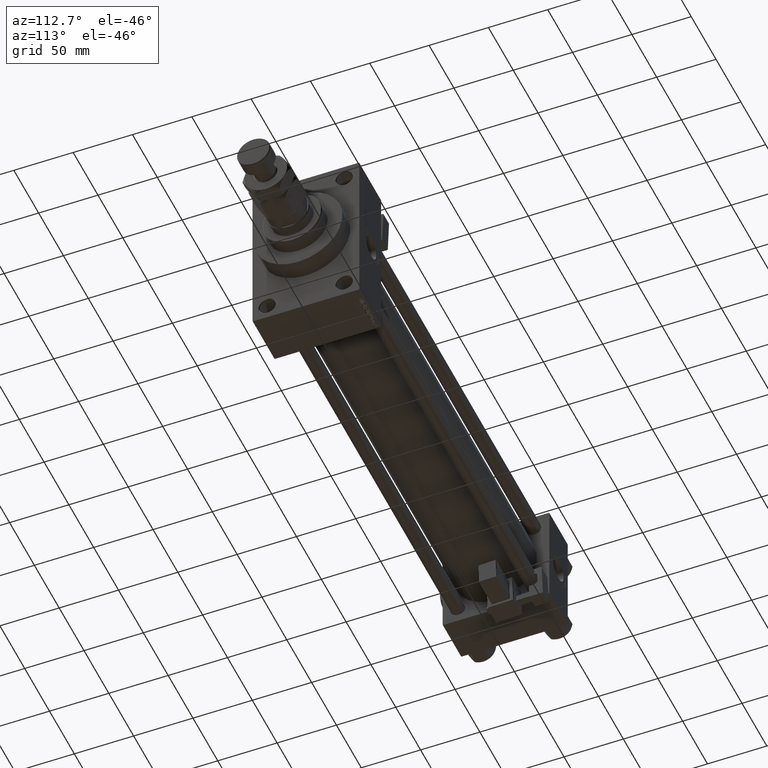
[diagram: clean part render]
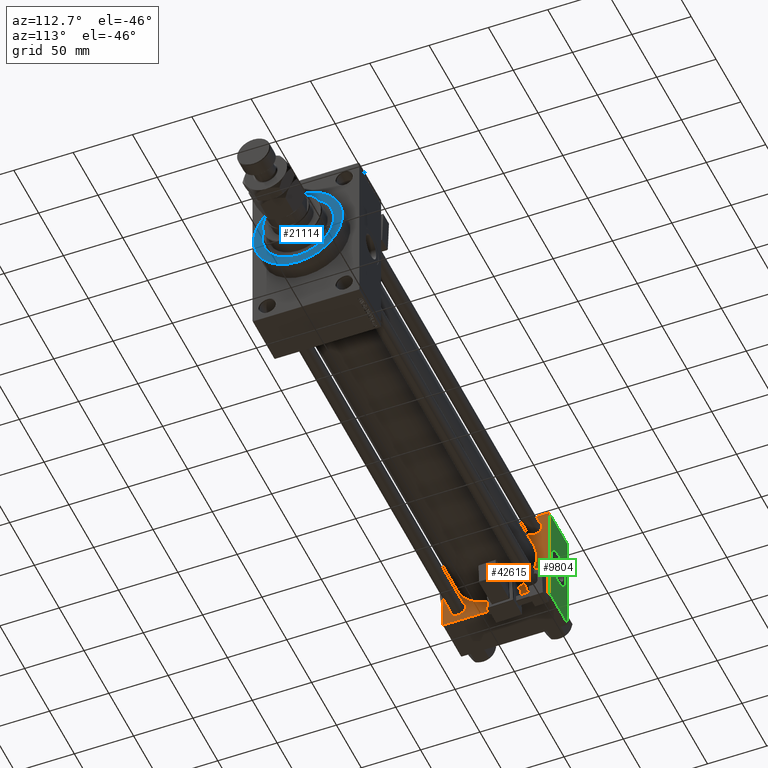
[diagram: same view with three faces highlighted in distinct colors, each labeled with its STEP entity id]
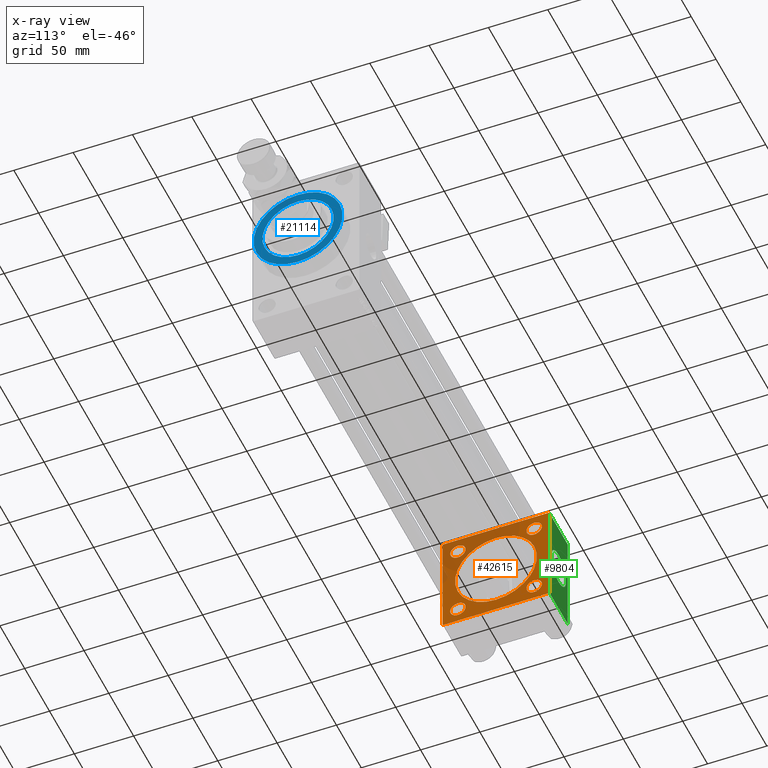
[diagram: x-ray of the same camera — body ghosted, the three highlighted faces saturated]
A machine part, auxiliary view with three faces highlighted in distinct colors.
The next image is the same camera in x-ray (body ghosted, the three faces saturated) — at least one of them is partly hidden behind the body in this view.
Their STEP definitions:

[orange] entity #42615 — the highlighted planar face has unit normal (-1, 0, 0).
#967 = DIRECTION ( 'NONE',  ( -1.000000000000000000, 0.000000000000000000, -0.000000000000000000 ) ) ;
#1260 = DIRECTION ( 'NONE',  ( -0.000000000000000000, -0.7071067811865425767, -0.7071067811865524577 ) ) ;
#2042 = AXIS2_PLACEMENT_3D ( 'NONE', #6447, #30708, #38502 ) ;
#2333 = CARTESIAN_POINT ( 'NONE',  ( 36.99999999999997868, -2.602085213965210642E-15, 0.000000000000000000 ) ) ;
#2644 = LINE ( 'NONE', #23379, #8742 ) ;
#3036 = LINE ( 'NONE', #19444, #31451 ) ;
#3097 = ORIENTED_EDGE ( 'NONE', *, *, #38241, .T. ) ;
#3404 = EDGE_CURVE ( 'NONE', #7180, #24565, #35695, .T. ) ;
#3500 = ORIENTED_EDGE ( 'NONE', *, *, #31739, .T. ) ;
#4148 = DIRECTION ( 'NONE',  ( 0.000000000000000000, 0.000000000000000000, 1.000000000000000000 ) ) ;
#4194 = CARTESIAN_POINT ( 'NONE',  ( 37.00000000000000000, -45.00000000000000711, 44.49999999999997158 ) ) ;
#4258 = CARTESIAN_POINT ( 'NONE',  ( 37.00000000000000000, -32.14999999999997726, 25.65000000000011582 ) ) ;
#4375 = ORIENTED_EDGE ( 'NONE', *, *, #44394, .T. ) ;
#4892 = CIRCLE ( 'NONE', #20361, 6.500000000000005329 ) ;
#5255 = CARTESIAN_POINT ( 'NONE',  ( 37.00000000000000000, -45.00000000000000711, 45.00000000000000000 ) ) ;
#5398 = EDGE_LOOP ( 'NONE', ( #21678, #28680, #50970, #23468, #30907, #4375, #35516, #30703 ) ) ;
#6238 = EDGE_LOOP ( 'NONE', ( #3097, #19014 ) ) ;
#6447 = CARTESIAN_POINT ( 'NONE',  ( 37.00000000000000000, -32.14999999999997726, -32.15000000000001279 ) ) ;
#6909 = ORIENTED_EDGE ( 'NONE', *, *, #48208, .T. ) ;
#6958 = CARTESIAN_POINT ( 'NONE',  ( 37.00000000000000000, -45.00000000000000000, -44.49999999999995737 ) ) ;
#6963 = EDGE_CURVE ( 'NONE', #52634, #36234, #3036, .T. ) ;
#7012 = VERTEX_POINT ( 'NONE', #49559 ) ;
#7180 = VERTEX_POINT ( 'NONE', #30457 ) ;
#7346 = VERTEX_POINT ( 'NONE', #48705 ) ;
#7551 = CARTESIAN_POINT ( 'NONE',  ( 37.00000000000000000, 44.49999999999998579, 45.00000000000001421 ) ) ;
#7955 = DIRECTION ( 'NONE',  ( 0.000000000000000000, 0.000000000000000000, 1.000000000000000000 ) ) ;
#8315 = VERTEX_POINT ( 'NONE', #44139 ) ;
#8742 = VECTOR ( 'NONE', #47559, 1000.000000000000000 ) ;
#8812 = DIRECTION ( 'NONE',  ( 0.000000000000000000, 0.7071067811865474617, -0.7071067811865474617 ) ) ;
#9273 = CARTESIAN_POINT ( 'NONE',  ( 37.00000000000000000, 32.14999999999999147, -25.64999999999999858 ) ) ;
#9663 = VERTEX_POINT ( 'NONE', #41100 ) ;
#10937 = FACE_BOUND ( 'NONE', #24078, .T. ) ;
#11001 = CIRCLE ( 'NONE', #41078, 6.499999999999895195 ) ;
#11408 = CARTESIAN_POINT ( 'NONE',  ( 37.00000000000000000, -32.14999999999997726, 38.64999999999990621 ) ) ;
#11741 = FACE_BOUND ( 'NONE', #41580, .T. ) ;
#12147 = DIRECTION ( 'NONE',  ( 0.000000000000000000, 0.000000000000000000, 1.000000000000000000 ) ) ;
#12582 = VECTOR ( 'NONE', #13594, 1000.000000000000000 ) ;
#13566 = CIRCLE ( 'NONE', #20438, 6.499999999999895195 ) ;
#13594 = DIRECTION ( 'NONE',  ( 0.000000000000000000, 7.709882115452476934E-17, -1.000000000000000000 ) ) ;
#14768 = CIRCLE ( 'NONE', #26809, 6.500000000000005329 ) ;
#14966 = PLANE ( 'NONE',  #36466 ) ;
#15661 = CARTESIAN_POINT ( 'NONE',  ( 36.99999999999997868, -2.602085213965210642E-15, 0.000000000000000000 ) ) ;
#16002 = EDGE_CURVE ( 'NONE', #46662, #9663, #24200, .T. ) ;
#16101 = DIRECTION ( 'NONE',  ( -1.000000000000000000, 0.000000000000000000, -0.000000000000000000 ) ) ;
#16358 = CARTESIAN_POINT ( 'NONE',  ( 37.00000000000000000, -44.49999999999998579, -45.00000000000000000 ) ) ;
#16507 = EDGE_CURVE ( 'NONE', #50038, #52047, #14768, .T. ) ;
#16555 = DIRECTION ( 'NONE',  ( -1.000000000000000000, 0.000000000000000000, -0.000000000000000000 ) ) ;
#19014 = ORIENTED_EDGE ( 'NONE', *, *, #35829, .T. ) ;
#19195 = DIRECTION ( 'NONE',  ( 0.000000000000000000, 0.000000000000000000, 1.000000000000000000 ) ) ;
#19219 = EDGE_CURVE ( 'NONE', #46174, #20426, #2644, .T. ) ;
#19444 = CARTESIAN_POINT ( 'NONE',  ( 37.00000000000000000, 44.99999999999998579, 45.00000000000001421 ) ) ;
#19739 = CARTESIAN_POINT ( 'NONE',  ( 37.00000000000000000, -32.14999999999997726, -38.64999999999990621 ) ) ;
#19809 = CARTESIAN_POINT ( 'NONE',  ( 37.00000000000000000, 0.000000000000000000, 0.000000000000000000 ) ) ;
#19816 = CARTESIAN_POINT ( 'NONE',  ( 37.00000000000000000, 32.14999999999999147, -32.15000000000000568 ) ) ;
#20061 = FACE_BOUND ( 'NONE', #37650, .T. ) ;
#20099 = VECTOR ( 'NONE', #8812, 1000.000000000000114 ) ;
#20142 = ORIENTED_EDGE ( 'NONE', *, *, #27821, .T. ) ;
#20361 = AXIS2_PLACEMENT_3D ( 'NONE', #20802, #33223, #4148 ) ;
#20426 = VERTEX_POINT ( 'NONE', #48085 ) ;
#20438 = AXIS2_PLACEMENT_3D ( 'NONE', #45666, #16101, #25242 ) ;
#20802 = CARTESIAN_POINT ( 'NONE',  ( 37.00000000000000000, 32.14999999999999147, 32.15000000000000568 ) ) ;
#21678 = ORIENTED_EDGE ( 'NONE', *, *, #19219, .F. ) ;
#21747 = CIRCLE ( 'NONE', #27787, 34.50000000000000000 ) ;
#21955 = EDGE_CURVE ( 'NONE', #46174, #7346, #49012, .T. ) ;
#22021 = EDGE_CURVE ( 'NONE', #9663, #46662, #21747, .T. ) ;
#22172 = CARTESIAN_POINT ( 'NONE',  ( 37.00000000000000000, -44.49999999999995737, 45.00000000000000000 ) ) ;
#23379 = CARTESIAN_POINT ( 'NONE',  ( 37.00000000000000000, 44.99999999999998579, -44.99999999999998579 ) ) ;
#23468 = ORIENTED_EDGE ( 'NONE', *, *, #53108, .T. ) ;
#24078 = EDGE_LOOP ( 'NONE', ( #46796, #25284 ) ) ;
#24200 = CIRCLE ( 'NONE', #43067, 34.50000000000000000 ) ;
#24267 = EDGE_CURVE ( 'NONE', #36583, #20426, #48914, .T. ) ;
#24565 = VERTEX_POINT ( 'NONE', #9273 ) ;
#25242 = DIRECTION ( 'NONE',  ( 0.000000000000000000, 0.000000000000000000, 1.000000000000000000 ) ) ;
#25284 = ORIENTED_EDGE ( 'NONE', *, *, #16002, .F. ) ;
#25320 = ORIENTED_EDGE ( 'NONE', *, *, #3404, .T. ) ;
#25484 = VERTEX_POINT ( 'NONE', #4194 ) ;
#25868 = VERTEX_POINT ( 'NONE', #19739 ) ;
#26414 = DIRECTION ( 'NONE',  ( 0.000000000000000000, 0.000000000000000000, -1.000000000000000000 ) ) ;
#26722 = EDGE_CURVE ( 'NONE', #8315, #7346, #43059, .T. ) ;
#26809 = AXIS2_PLACEMENT_3D ( 'NONE', #35364, #43697, #19195 ) ;
#26929 = ORIENTED_EDGE ( 'NONE', *, *, #36113, .T. ) ;
#27497 = CARTESIAN_POINT ( 'NONE',  ( 37.00000000000000000, 44.99999999999998579, 45.00000000000001421 ) ) ;
#27787 = AXIS2_PLACEMENT_3D ( 'NONE', #15661, #32098, #12147 ) ;
#27821 = EDGE_CURVE ( 'NONE', #36659, #50703, #28019, .T. ) ;
#28019 = CIRCLE ( 'NONE', #45185, 6.499999999999895195 ) ;
#28246 = CARTESIAN_POINT ( 'NONE',  ( 37.00000000000000000, -32.14999999999997726, 32.15000000000001279 ) ) ;
#28680 = ORIENTED_EDGE ( 'NONE', *, *, #21955, .T. ) ;
#28812 = DIRECTION ( 'NONE',  ( 0.000000000000000000, -0.7071067811865474617, 0.7071067811865474617 ) ) ;
#29016 = CARTESIAN_POINT ( 'NONE',  ( 37.00000000000000000, 44.49999999999998579, 45.00000000000001421 ) ) ;
#29636 = EDGE_CURVE ( 'NONE', #25484, #36583, #29783, .T. ) ;
#29783 = LINE ( 'NONE', #5255, #12582 ) ;
#30339 = CARTESIAN_POINT ( 'NONE',  ( 37.00000000000000000, -45.00000000000000711, 44.49999999999997158 ) ) ;
#30457 = CARTESIAN_POINT ( 'NONE',  ( 37.00000000000000000, 32.14999999999999147, -38.65000000000001279 ) ) ;
#30573 = CIRCLE ( 'NONE', #46023, 6.500000000000005329 ) ;
#30703 = ORIENTED_EDGE ( 'NONE', *, *, #24267, .T. ) ;
#30708 = DIRECTION ( 'NONE',  ( -1.000000000000000000, 0.000000000000000000, -0.000000000000000000 ) ) ;
#30907 = ORIENTED_EDGE ( 'NONE', *, *, #6963, .T. ) ;
#31451 = VECTOR ( 'NONE', #52256, 1000.000000000000000 ) ;
#31688 = FACE_BOUND ( 'NONE', #39051, .T. ) ;
#31739 = EDGE_CURVE ( 'NONE', #24565, #7180, #30573, .T. ) ;
#32098 = DIRECTION ( 'NONE',  ( 1.000000000000000000, -0.000000000000000000, 0.000000000000000000 ) ) ;
#32379 = DIRECTION ( 'NONE',  ( -0.000000000000000000, 0.7071067811865474617, 0.7071067811865474617 ) ) ;
#32849 = LINE ( 'NONE', #7551, #47039 ) ;
#33003 = CARTESIAN_POINT ( 'NONE',  ( 37.00000000000000000, 44.49999999999998579, -44.99999999999998579 ) ) ;
#33056 = DIRECTION ( 'NONE',  ( 0.000000000000000000, 0.000000000000000000, 1.000000000000000000 ) ) ;
#33223 = DIRECTION ( 'NONE',  ( -1.000000000000000000, 0.000000000000000000, -0.000000000000000000 ) ) ;
#34383 = DIRECTION ( 'NONE',  ( 1.000000000000000000, -0.000000000000000000, 0.000000000000000000 ) ) ;
#35364 = CARTESIAN_POINT ( 'NONE',  ( 37.00000000000000000, 32.14999999999999147, 32.15000000000000568 ) ) ;
#35516 = ORIENTED_EDGE ( 'NONE', *, *, #29636, .T. ) ;
#35695 = CIRCLE ( 'NONE', #47693, 6.500000000000005329 ) ;
#35829 = EDGE_CURVE ( 'NONE', #7012, #25868, #13566, .T. ) ;
#36113 = EDGE_CURVE ( 'NONE', #50703, #36659, #11001, .T. ) ;
#36234 = VERTEX_POINT ( 'NONE', #22172 ) ;
#36239 = DIRECTION ( 'NONE',  ( -1.000000000000000000, 0.000000000000000000, -0.000000000000000000 ) ) ;
#36286 = DIRECTION ( 'NONE',  ( -1.000000000000000000, 0.000000000000000000, -0.000000000000000000 ) ) ;
#36365 = VECTOR ( 'NONE', #32379, 1000.000000000000114 ) ;
#36466 = AXIS2_PLACEMENT_3D ( 'NONE', #19809, #43489, #52352 ) ;
#36492 = FACE_BOUND ( 'NONE', #6238, .T. ) ;
#36583 = VERTEX_POINT ( 'NONE', #6958 ) ;
#36659 = VERTEX_POINT ( 'NONE', #4258 ) ;
#37650 = EDGE_LOOP ( 'NONE', ( #25320, #3500 ) ) ;
#38241 = EDGE_CURVE ( 'NONE', #25868, #7012, #41568, .T. ) ;
#38268 = VECTOR ( 'NONE', #1260, 1000.000000000000114 ) ;
#38502 = DIRECTION ( 'NONE',  ( 0.000000000000000000, 0.000000000000000000, 1.000000000000000000 ) ) ;
#38518 = CARTESIAN_POINT ( 'NONE',  ( 37.00000000000000000, 32.14999999999999147, 38.65000000000001279 ) ) ;
#39051 = EDGE_LOOP ( 'NONE', ( #41983, #6909 ) ) ;
#40671 = CARTESIAN_POINT ( 'NONE',  ( 37.00000000000000000, 44.99999999999998579, -44.49999999999998579 ) ) ;
#41078 = AXIS2_PLACEMENT_3D ( 'NONE', #49897, #16555, #7955 ) ;
#41100 = CARTESIAN_POINT ( 'NONE',  ( 36.99999999999997868, -2.602085213965210642E-15, 34.50000000000000000 ) ) ;
#41568 = CIRCLE ( 'NONE', #2042, 6.499999999999895195 ) ;
#41580 = EDGE_LOOP ( 'NONE', ( #20142, #26929 ) ) ;
#41983 = ORIENTED_EDGE ( 'NONE', *, *, #16507, .T. ) ;
#42615 = ADVANCED_FACE ( 'NONE', ( #36492, #20061, #11741, #31688, #10937, #51806 ), #14966, .F. ) ;
#42644 = CARTESIAN_POINT ( 'NONE',  ( 37.00000000000000000, 32.14999999999999147, -32.15000000000000568 ) ) ;
#43059 = LINE ( 'NONE', #27497, #47703 ) ;
#43067 = AXIS2_PLACEMENT_3D ( 'NONE', #2333, #34383, #47252 ) ;
#43489 = DIRECTION ( 'NONE',  ( -1.000000000000000000, 0.000000000000000000, -0.000000000000000000 ) ) ;
#43697 = DIRECTION ( 'NONE',  ( -1.000000000000000000, 0.000000000000000000, -0.000000000000000000 ) ) ;
#44139 = CARTESIAN_POINT ( 'NONE',  ( 37.00000000000000000, 44.99999999999998579, 44.50000000000001421 ) ) ;
#44394 = EDGE_CURVE ( 'NONE', #36234, #25484, #50488, .T. ) ;
#45185 = AXIS2_PLACEMENT_3D ( 'NONE', #28246, #36286, #33056 ) ;
#45223 = CARTESIAN_POINT ( 'NONE',  ( 36.99999999999997868, 1.622946243093158675E-15, -34.50000000000000000 ) ) ;
#45666 = CARTESIAN_POINT ( 'NONE',  ( 37.00000000000000000, -32.14999999999997726, -32.15000000000001279 ) ) ;
#46023 = AXIS2_PLACEMENT_3D ( 'NONE', #42644, #967, #50186 ) ;
#46174 = VERTEX_POINT ( 'NONE', #33003 ) ;
#46662 = VERTEX_POINT ( 'NONE', #45223 ) ;
#46796 = ORIENTED_EDGE ( 'NONE', *, *, #22021, .F. ) ;
#47039 = VECTOR ( 'NONE', #28812, 1000.000000000000114 ) ;
#47252 = DIRECTION ( 'NONE',  ( 0.000000000000000000, 0.000000000000000000, 1.000000000000000000 ) ) ;
#47559 = DIRECTION ( 'NONE',  ( 0.000000000000000000, -1.000000000000000000, -1.541976423090495633E-16 ) ) ;
#47581 = CARTESIAN_POINT ( 'NONE',  ( 37.00000000000000000, 32.14999999999999147, 25.64999999999999858 ) ) ;
#47693 = AXIS2_PLACEMENT_3D ( 'NONE', #19816, #36239, #52615 ) ;
#47703 = VECTOR ( 'NONE', #26414, 1000.000000000000000 ) ;
#48085 = CARTESIAN_POINT ( 'NONE',  ( 37.00000000000000000, -44.49999999999995737, -45.00000000000000000 ) ) ;
#48208 = EDGE_CURVE ( 'NONE', #52047, #50038, #4892, .T. ) ;
#48705 = CARTESIAN_POINT ( 'NONE',  ( 37.00000000000000000, 44.99999999999998579, -44.49999999999995737 ) ) ;
#48914 = LINE ( 'NONE', #16358, #20099 ) ;
#49012 = LINE ( 'NONE', #40671, #36365 ) ;
#49559 = CARTESIAN_POINT ( 'NONE',  ( 37.00000000000000000, -32.14999999999997726, -25.65000000000011582 ) ) ;
#49897 = CARTESIAN_POINT ( 'NONE',  ( 37.00000000000000000, -32.14999999999997726, 32.15000000000001279 ) ) ;
#50038 = VERTEX_POINT ( 'NONE', #47581 ) ;
#50186 = DIRECTION ( 'NONE',  ( 0.000000000000000000, 0.000000000000000000, 1.000000000000000000 ) ) ;
#50488 = LINE ( 'NONE', #30339, #38268 ) ;
#50703 = VERTEX_POINT ( 'NONE', #11408 ) ;
#50970 = ORIENTED_EDGE ( 'NONE', *, *, #26722, .F. ) ;
#51806 = FACE_OUTER_BOUND ( 'NONE', #5398, .T. ) ;
#52047 = VERTEX_POINT ( 'NONE', #38518 ) ;
#52256 = DIRECTION ( 'NONE',  ( 0.000000000000000000, -1.000000000000000000, -1.541976423090495387E-16 ) ) ;
#52352 = DIRECTION ( 'NONE',  ( -0.000000000000000000, 0.000000000000000000, 1.000000000000000000 ) ) ;
#52615 = DIRECTION ( 'NONE',  ( 0.000000000000000000, 0.000000000000000000, 1.000000000000000000 ) ) ;
#52634 = VERTEX_POINT ( 'NONE', #29016 ) ;
#53108 = EDGE_CURVE ( 'NONE', #8315, #52634, #32849, .T. ) ;

[blue] entity #21114 — the highlighted planar face has unit normal (1, 0, 0).
#1711 = DIRECTION ( 'NONE',  ( 1.000000000000000000, 0.000000000000000000, 0.000000000000000000 ) ) ;
#3223 = DIRECTION ( 'NONE',  ( 0.000000000000000000, 0.000000000000000000, -1.000000000000000000 ) ) ;
#5541 = ORIENTED_EDGE ( 'NONE', *, *, #10339, .F. ) ;
#6533 = AXIS2_PLACEMENT_3D ( 'NONE', #35902, #15978, #48793 ) ;
#7502 = AXIS2_PLACEMENT_3D ( 'NONE', #38594, #1711, #18124 ) ;
#10339 = EDGE_CURVE ( 'NONE', #26899, #41835, #48743, .T. ) ;
#11900 = CARTESIAN_POINT ( 'NONE',  ( 436.0000000000000000, 4.592425496802575156E-15, -37.50000000000000711 ) ) ;
#12519 = CARTESIAN_POINT ( 'NONE',  ( 436.0000000000000000, 3.673940397442059178E-15, 30.00000000000000000 ) ) ;
#15337 = CARTESIAN_POINT ( 'NONE',  ( 436.0000000000000000, 0.000000000000000000, 0.000000000000000000 ) ) ;
#15978 = DIRECTION ( 'NONE',  ( 1.000000000000000000, 0.000000000000000000, 0.000000000000000000 ) ) ;
#16767 = CARTESIAN_POINT ( 'NONE',  ( 436.0000000000000000, 0.000000000000000000, 0.000000000000000000 ) ) ;
#16877 = CIRCLE ( 'NONE', #6533, 30.00000000000000000 ) ;
#18124 = DIRECTION ( 'NONE',  ( 0.000000000000000000, 0.000000000000000000, -1.000000000000000000 ) ) ;
#20096 = AXIS2_PLACEMENT_3D ( 'NONE', #15337, #53232, #3223 ) ;
#21114 = ADVANCED_FACE ( 'NONE', ( #21334, #21849 ), #29980, .T. ) ;
#21334 = FACE_BOUND ( 'NONE', #49457, .T. ) ;
#21849 = FACE_OUTER_BOUND ( 'NONE', #35661, .T. ) ;
#25397 = DIRECTION ( 'NONE',  ( 1.000000000000000000, 0.000000000000000000, 0.000000000000000000 ) ) ;
#26899 = VERTEX_POINT ( 'NONE', #38979 ) ;
#27072 = ORIENTED_EDGE ( 'NONE', *, *, #45952, .F. ) ;
#29556 = DIRECTION ( 'NONE',  ( 0.000000000000000000, 0.000000000000000000, -1.000000000000000000 ) ) ;
#29980 = PLANE ( 'NONE',  #47468 ) ;
#31264 = CIRCLE ( 'NONE', #35546, 37.50000000000000711 ) ;
#32188 = VERTEX_POINT ( 'NONE', #11900 ) ;
#33874 = CIRCLE ( 'NONE', #20096, 37.50000000000000711 ) ;
#35546 = AXIS2_PLACEMENT_3D ( 'NONE', #37866, #38662, #29556 ) ;
#35661 = EDGE_LOOP ( 'NONE', ( #46271, #40025 ) ) ;
#35902 = CARTESIAN_POINT ( 'NONE',  ( 436.0000000000000000, 0.000000000000000000, 0.000000000000000000 ) ) ;
#37866 = CARTESIAN_POINT ( 'NONE',  ( 436.0000000000000000, 0.000000000000000000, 0.000000000000000000 ) ) ;
#38414 = EDGE_CURVE ( 'NONE', #53162, #32188, #33874, .T. ) ;
#38594 = CARTESIAN_POINT ( 'NONE',  ( 436.0000000000000000, 0.000000000000000000, 0.000000000000000000 ) ) ;
#38662 = DIRECTION ( 'NONE',  ( 1.000000000000000000, 0.000000000000000000, 0.000000000000000000 ) ) ;
#38979 = CARTESIAN_POINT ( 'NONE',  ( 436.0000000000000000, 0.000000000000000000, -30.00000000000000000 ) ) ;
#40025 = ORIENTED_EDGE ( 'NONE', *, *, #40499, .T. ) ;
#40499 = EDGE_CURVE ( 'NONE', #32188, #53162, #31264, .T. ) ;
#41835 = VERTEX_POINT ( 'NONE', #12519 ) ;
#42458 = CARTESIAN_POINT ( 'NONE',  ( 436.0000000000000000, 0.000000000000000000, 37.50000000000000711 ) ) ;
#45952 = EDGE_CURVE ( 'NONE', #41835, #26899, #16877, .T. ) ;
#46271 = ORIENTED_EDGE ( 'NONE', *, *, #38414, .T. ) ;
#47468 = AXIS2_PLACEMENT_3D ( 'NONE', #16767, #25397, #50101 ) ;
#48743 = CIRCLE ( 'NONE', #7502, 30.00000000000000000 ) ;
#48793 = DIRECTION ( 'NONE',  ( 0.000000000000000000, 0.000000000000000000, -1.000000000000000000 ) ) ;
#49457 = EDGE_LOOP ( 'NONE', ( #5541, #27072 ) ) ;
#50101 = DIRECTION ( 'NONE',  ( 0.000000000000000000, 0.000000000000000000, -1.000000000000000000 ) ) ;
#53162 = VERTEX_POINT ( 'NONE', #42458 ) ;
#53232 = DIRECTION ( 'NONE',  ( 1.000000000000000000, 0.000000000000000000, 0.000000000000000000 ) ) ;

[green] entity #9804 — the highlighted planar face has unit normal (0, 1, 0).
#561 = VERTEX_POINT ( 'NONE', #51146 ) ;
#2000 = LINE ( 'NONE', #25729, #5609 ) ;
#3520 = EDGE_CURVE ( 'NONE', #7346, #47391, #2000, .T. ) ;
#5292 = FACE_OUTER_BOUND ( 'NONE', #27862, .T. ) ;
#5516 = DIRECTION ( 'NONE',  ( -1.000000000000000000, 0.000000000000000000, 0.000000000000000000 ) ) ;
#5609 = VECTOR ( 'NONE', #5516, 1000.000000000000000 ) ;
#6245 = VERTEX_POINT ( 'NONE', #51123 ) ;
#7332 = EDGE_CURVE ( 'NONE', #30226, #8315, #20441, .T. ) ;
#7346 = VERTEX_POINT ( 'NONE', #48705 ) ;
#8274 = LINE ( 'NONE', #37061, #20327 ) ;
#8315 = VERTEX_POINT ( 'NONE', #44139 ) ;
#8851 = DIRECTION ( 'NONE',  ( 0.000000000000000000, 0.000000000000000000, 1.000000000000000000 ) ) ;
#9527 = ORIENTED_EDGE ( 'NONE', *, *, #50457, .F. ) ;
#9804 = ADVANCED_FACE ( 'NONE', ( #49953, #5292 ), #37599, .T. ) ;
#10420 = ORIENTED_EDGE ( 'NONE', *, *, #33594, .F. ) ;
#13562 = AXIS2_PLACEMENT_3D ( 'NONE', #19540, #28191, #24383 ) ;
#13684 = EDGE_CURVE ( 'NONE', #561, #6245, #49034, .T. ) ;
#14316 = CARTESIAN_POINT ( 'NONE',  ( 0.000000000000000000, 44.99999999999998579, -44.49999999999995737 ) ) ;
#16879 = DIRECTION ( 'NONE',  ( -0.000000000000000000, 1.000000000000000000, 0.000000000000000000 ) ) ;
#19540 = CARTESIAN_POINT ( 'NONE',  ( 18.50000000000000000, 44.99999999999998579, 0.000000000000000000 ) ) ;
#20327 = VECTOR ( 'NONE', #41096, 1000.000000000000000 ) ;
#20441 = LINE ( 'NONE', #41166, #22817 ) ;
#20648 = AXIS2_PLACEMENT_3D ( 'NONE', #37910, #21742, #8851 ) ;
#21686 = ORIENTED_EDGE ( 'NONE', *, *, #26722, .T. ) ;
#21742 = DIRECTION ( 'NONE',  ( 0.000000000000000000, 1.000000000000000000, 0.000000000000000000 ) ) ;
#22817 = VECTOR ( 'NONE', #32334, 1000.000000000000000 ) ;
#24383 = DIRECTION ( 'NONE',  ( 0.000000000000000000, 0.000000000000000000, 1.000000000000000000 ) ) ;
#25729 = CARTESIAN_POINT ( 'NONE',  ( 37.00000000000000000, 44.99999999999998579, -44.49999999999998579 ) ) ;
#26113 = CARTESIAN_POINT ( 'NONE',  ( 0.000000000000000000, 44.99999999999998579, 44.50000000000001421 ) ) ;
#26414 = DIRECTION ( 'NONE',  ( 0.000000000000000000, 0.000000000000000000, -1.000000000000000000 ) ) ;
#26722 = EDGE_CURVE ( 'NONE', #8315, #7346, #43059, .T. ) ;
#27497 = CARTESIAN_POINT ( 'NONE',  ( 37.00000000000000000, 44.99999999999998579, 45.00000000000001421 ) ) ;
#27862 = EDGE_LOOP ( 'NONE', ( #21686, #47067, #10420, #30274 ) ) ;
#28191 = DIRECTION ( 'NONE',  ( 0.000000000000000000, 1.000000000000000000, 0.000000000000000000 ) ) ;
#30226 = VERTEX_POINT ( 'NONE', #26113 ) ;
#30274 = ORIENTED_EDGE ( 'NONE', *, *, #7332, .T. ) ;
#30742 = ORIENTED_EDGE ( 'NONE', *, *, #13684, .F. ) ;
#32334 = DIRECTION ( 'NONE',  ( 1.000000000000000000, 0.000000000000000000, 0.000000000000000000 ) ) ;
#33594 = EDGE_CURVE ( 'NONE', #30226, #47391, #8274, .T. ) ;
#36778 = CIRCLE ( 'NONE', #13562, 15.00000000000000178 ) ;
#37061 = CARTESIAN_POINT ( 'NONE',  ( 0.000000000000000000, 44.99999999999998579, 45.00000000000001421 ) ) ;
#37599 = PLANE ( 'NONE',  #51258 ) ;
#37910 = CARTESIAN_POINT ( 'NONE',  ( 18.50000000000000000, 44.99999999999998579, 0.000000000000000000 ) ) ;
#38817 = EDGE_LOOP ( 'NONE', ( #30742, #9527 ) ) ;
#41096 = DIRECTION ( 'NONE',  ( 0.000000000000000000, 0.000000000000000000, -1.000000000000000000 ) ) ;
#41166 = CARTESIAN_POINT ( 'NONE',  ( 37.00000000000000000, 44.99999999999998579, 44.50000000000001421 ) ) ;
#43059 = LINE ( 'NONE', #27497, #47703 ) ;
#44139 = CARTESIAN_POINT ( 'NONE',  ( 37.00000000000000000, 44.99999999999998579, 44.50000000000001421 ) ) ;
#45658 = DIRECTION ( 'NONE',  ( 0.000000000000000000, -0.000000000000000000, 1.000000000000000000 ) ) ;
#46183 = CARTESIAN_POINT ( 'NONE',  ( 37.00000000000000000, 44.99999999999998579, 45.00000000000001421 ) ) ;
#47067 = ORIENTED_EDGE ( 'NONE', *, *, #3520, .T. ) ;
#47391 = VERTEX_POINT ( 'NONE', #14316 ) ;
#47703 = VECTOR ( 'NONE', #26414, 1000.000000000000000 ) ;
#48705 = CARTESIAN_POINT ( 'NONE',  ( 37.00000000000000000, 44.99999999999998579, -44.49999999999995737 ) ) ;
#49034 = CIRCLE ( 'NONE', #20648, 15.00000000000000178 ) ;
#49953 = FACE_BOUND ( 'NONE', #38817, .T. ) ;
#50457 = EDGE_CURVE ( 'NONE', #6245, #561, #36778, .T. ) ;
#51123 = CARTESIAN_POINT ( 'NONE',  ( 18.50000000000000355, 44.99999999999998579, -15.00000000000000178 ) ) ;
#51146 = CARTESIAN_POINT ( 'NONE',  ( 18.50000000000000000, 44.99999999999998579, 15.00000000000000178 ) ) ;
#51258 = AXIS2_PLACEMENT_3D ( 'NONE', #46183, #16879, #45658 ) ;